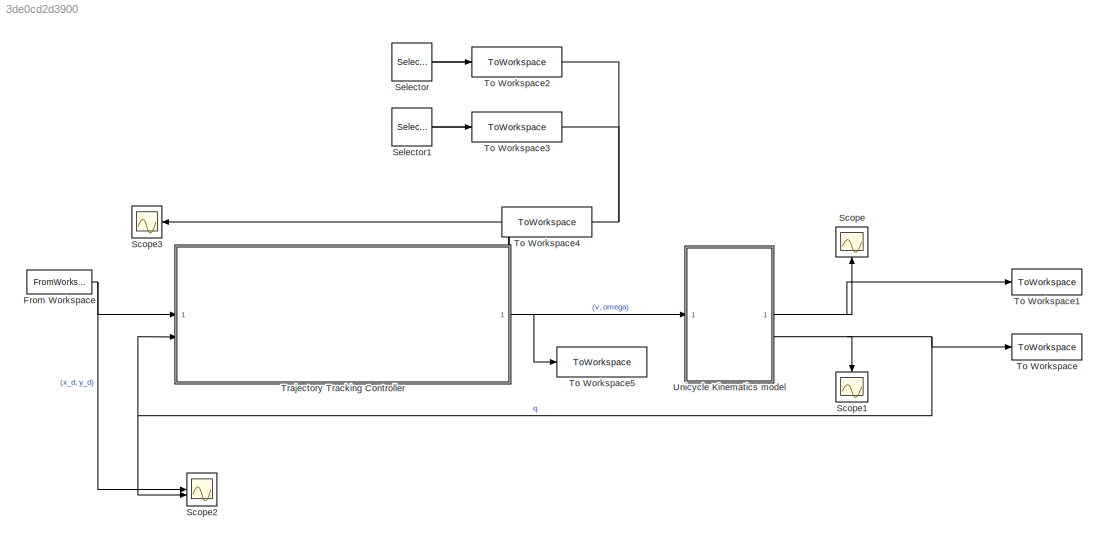
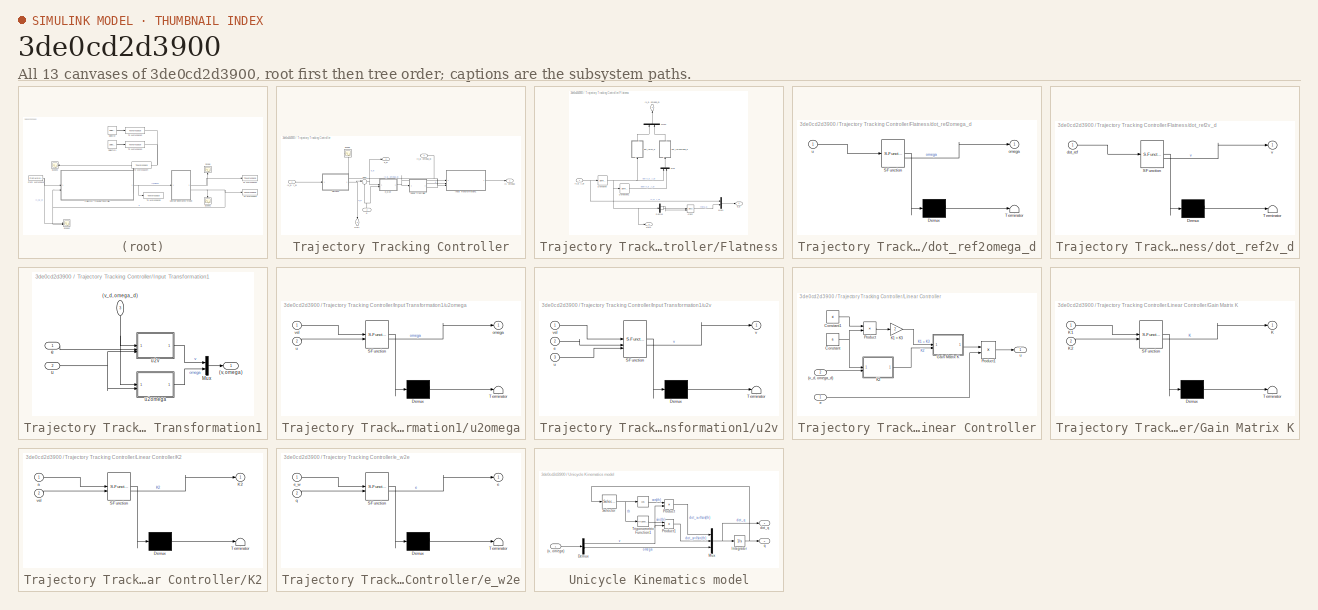
[diagram: thumbnail index - all 13 canvases of the model, root first then tree order]
MODEL slx_3de0cd2d3900
KIND model
CONFIG AbsTol = auto
CONFIG EnableMultiTasking = off
CONFIG FixedStep = Ts
CONFIG MaxStep = auto
CONFIG MinStep = auto
CONFIG RelTol = 1e-3
CONFIG SampleTimeConstraint = Unconstrained
CONFIG SolverName = FixedStepAuto
CONFIG StartTime = 0.0
CONFIG StopTime = 14.3996
BLOCK [FromWorkspace] From Workspace
  OutDataTypeStr = double
  SampleTime = -1
  VariableName = ref
BLOCK [Scope] Scope
  ActiveDisplayYMaximum = 630.9359
  ActiveDisplayYMinimum = -1203.295
  DataLoggingVariableName = ScopeData4
  Floating = off
  GraphicalSettings = {"GraphicalSettings":{"LegacySettings":true,"Style":{"AxesScalingProperties":{"AlignXAxis":"Center","AlignYAxis":"Center","AutoScaleXAxisLimits":true,"AxesScaling":"Manual","AxesScalingNumUpdates":10,"ScaleAxesLimitsAtStop":false,"XAxisDataRange":100,"YAxisDataRange":80},"Style":{"AxesColor":"[0.0705882352941176 0.0705882352941176 0.0705882352941176]","BackgroundColor":"[0.129411764705882 0.129411...<+803ch>
  LayoutDimensionsString = [1 1]
  MultipleDisplayCache = [{"MaxYLimMag":10,"MaxYLimReal":630.9359,"MinYLimMag":0,"MinYLimReal":-1203.295,"PlotAsMagnitudePhase":false,"ShowGrid":true,"ShowLegend":false,"Title":"%<SignalLabel>","YLabel":""}]
  NameLocation = right
  NumInputPorts = 1
  WasSavedAsWebScope = on
  WindowPosition = [47 38 1874 1011]
BLOCK [Scope] Scope1
  ActiveDisplayYMaximum = 317.524
  ActiveDisplayYMinimum = -65.2076
  Floating = off
  GraphicalSettings = {"GraphicalSettings":{"LegacySettings":true,"Style":{"AxesScalingProperties":{"AlignXAxis":"Center","AlignYAxis":"Center","AutoScaleXAxisLimits":false,"AxesScaling":"Manual","AxesScalingNumUpdates":10,"ScaleAxesLimitsAtStop":false,"XAxisDataRange":100,"YAxisDataRange":80},"Style":{"AxesColor":"[0.0666666666666667 0.0666666666666667 0.0666666666666667]","BackgroundColor":"[0.12156862745098 0.121568...<+994ch>
  LayoutDimensionsString = [1 1]
  MultipleDisplayCache = [{"MaxYLimMag":1518.8667,"MaxYLimReal":317.524,"MinYLimMag":0,"MinYLimReal":-65.2076,"PlotAsMagnitudePhase":false,"ShowGrid":true,"ShowLegend":true,"Title":"%<SignalLabel>","YLabel":""}]
  NameLocation = left
  NumInputPorts = 1
  ShowLegend = on
  WasSavedAsWebScope = on
  WindowPosition = [1 49 1536 793]
BLOCK [Scope] Scope2
  ActiveDisplayYMaximum = 262.44406438880804
  ActiveDisplayYMinimum = 86.844534678164
  DataLoggingVariableName = ScopeData2
  Floating = off
  GraphicalSettings = {"AxesScalingProperties":{"AlignXAxis":"Center","AlignYAxis":"Center","AutoScaleXAxisLimits":false,"AxesScaling":"Manual","AxesScalingNumUpdates":10,"ExpandOnly":true,"ScaleAxesLimitsAtStop":false,"XAxisDataRange":100,"YAxisDataRange":80},"DisplayProperties":{"ColorOrder":["auto","auto","auto","auto","auto","auto","auto","auto","auto","auto","auto","auto","auto","auto","auto","auto","auto","auto",...<+2464ch>
  LayoutDimensionsString = [1 1]
  MultipleDisplayCache = [{"MaxYLimMag":287.9156445226597,"MaxYLimReal":262.44406438880804,"MinYLimMag":0,"MinYLimReal":86.844534678164,"PlotAsMagnitudePhase":false,"ShowGrid":true,"ShowLegend":true,"Title":"%<SignalLabel>","YLabel":""}]
  NumInputPorts = 2
  ScopeFrameLocation = window
  ShowLegend = on
  WasSavedAsWebScope = on
  WindowPosition = [1.000000,49.000000,1536.000000,793.000000,]
BLOCK [Scope] Scope3
  ActiveDisplayYMaximum = 286.87400698797074
  ActiveDisplayYMinimum = -31.874889665330077
  DataLoggingVariableName = ScopeData1
  Floating = off
  GraphicalSettings = {"Style":{"BackgroundColor":[0.12941176470588237,0.12941176470588237,0.12941176470588237],"AxesColor":[0.07058823529411765,0.07058823529411765,0.07058823529411765],"LabelsColor":[0.8509803921568627,0.8509803921568627,0.8509803921568627],"PreserveColors":false,"Visible":[true,true,true],"LineStyle":["-","-","-"],"LineWidth":[1.5,1.5,1.5],"BarWidth":[0.9,0.9,0.9],"LineColor":["auto","auto","auto"],"...<+2400ch>
  MultipleDisplayCache = [{"MaxYLimMag":286.87400698797074,"MaxYLimReal":286.87400698797074,"MinYLimMag":0,"MinYLimReal":-31.874889665330077,"PlotAsMagnitudePhase":false,"ShowGrid":true,"ShowLegend":false,"Title":"%<SignalLabel>","YLabel":""}]
  NameLocation = top
  NumInputPorts = 1
  ScopeFrameLocation = window
  WasSavedAsWebScope = on
  WindowPosition = [488.000000,222.000000,560.000000,420.000000,]
BLOCK [Selector] Selector
  IndexOptions = Index vector (dialog)
  Indices = [1]
  InputPortWidth = 3
  OutputSizes = 1
BLOCK [Selector] Selector1
  IndexOptions = Index vector (dialog)
  Indices = [2]
  InputPortWidth = 3
  OutputSizes = 1
BLOCK [ToWorkspace] To Workspace
  FixptAsFi = on
  MaxDataPoints = inf
  SampleTime = -1
  SaveFormat = Timeseries
  VariableName = q
BLOCK [ToWorkspace] To Workspace1
  FixptAsFi = on
  MaxDataPoints = inf
  SampleTime = -1
  SaveFormat = Timeseries
  VariableName = qdot
BLOCK [ToWorkspace] To Workspace2
  FixptAsFi = on
  MaxDataPoints = inf
  SampleTime = -1
  SaveFormat = Timeseries
  VariableName = e_x
BLOCK [ToWorkspace] To Workspace3
  FixptAsFi = on
  MaxDataPoints = inf
  SampleTime = -1
  SaveFormat = Timeseries
  VariableName = e_y
BLOCK [ToWorkspace] To Workspace4
  FixptAsFi = on
  MaxDataPoints = inf
  SampleTime = -1
  SaveFormat = Timeseries
  VariableName = vd_wd
BLOCK [ToWorkspace] To Workspace5
  FixptAsFi = on
  MaxDataPoints = inf
  SampleTime = -1
  SaveFormat = Timeseries
  VariableName = vw
BLOCK [SubSystem] Trajectory Tracking Controller
  PortSchema = {"entries":[{"content":{"sides":[{"content":{"connectorIds":["In1","In2"]},"type":"ConnectorPlacement.EquallySpacedRectSide","uuid":"cd877c46-8e15-457a-8f54-61807ea2ef45"},{"content":{"connectorIds":["Out1"],"side":"RIGHT"},"type":"ConnectorPlacement.EquallySpacedRectSide","uuid":"176f7bf5-d0a0-4212-99fa-33b58d1f7853"},{"content":{"connectorIds":["Out2","Out3","Out4"],"side":"TOP"},"type":"Connect...<+266ch>
BLOCK [Outport] Trajectory Tracking Controller/(v, omega)
BLOCK [Outport] Trajectory Tracking Controller/(v_d, omega_d)
  Port = 4
BLOCK [Inport] Trajectory Tracking Controller/(x_d, y_d)
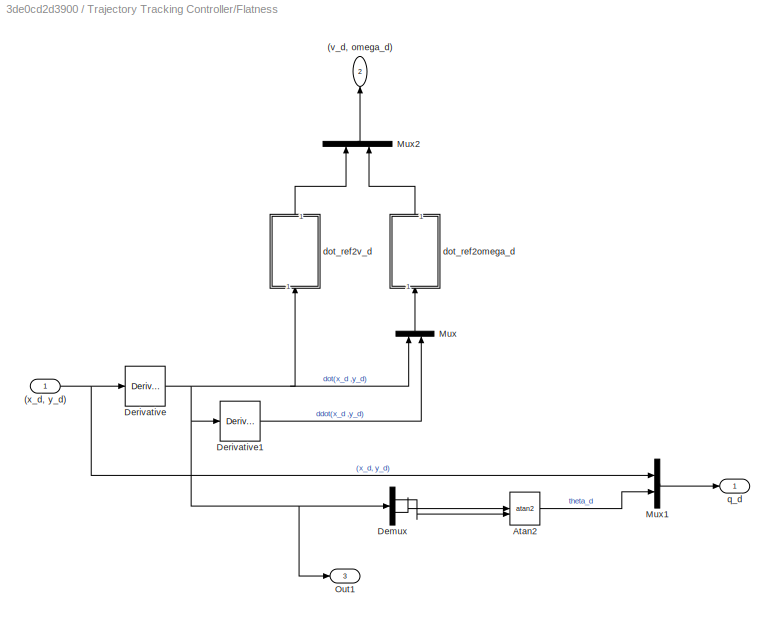
BLOCK [SubSystem] Trajectory Tracking Controller/Flatness
  PortSchema = {"entries":[{"content":{"sides":[{"content":{"connectorIds":["In1"]},"type":"ConnectorPlacement.EquallySpacedRectSide","uuid":"bc490c8e-5666-439b-9939-62bd84628b1f"},{"content":{"connectorIds":["Out1"],"side":"RIGHT"},"type":"ConnectorPlacement.EquallySpacedRectSide","uuid":"03a20fcc-2a82-4af2-a970-ff3426fda7d9"},{"content":{"connectorIds":["Out2","Out3"],"side":"TOP"},"type":"ConnectorPlacement.E...<+253ch>
BLOCK [Outport] Trajectory Tracking Controller/Flatness/(v_d, omega_d)
  NameLocation = right
  Port = 2
BLOCK [Inport] Trajectory Tracking Controller/Flatness/(x_d, y_d)
BLOCK [Trigonometry] Trajectory Tracking Controller/Flatness/Atan2
  Operator = atan2
BLOCK [Demux] Trajectory Tracking Controller/Flatness/Demux
  Outputs = 2
BLOCK [Derivative] Trajectory Tracking Controller/Flatness/Derivative
BLOCK [Derivative] Trajectory Tracking Controller/Flatness/Derivative1
BLOCK [Mux] Trajectory Tracking Controller/Flatness/Mux
  DisplayOption = bar
  Inputs = 2
  NameLocation = right
BLOCK [Mux] Trajectory Tracking Controller/Flatness/Mux1
  DisplayOption = bar
  Inputs = 2
BLOCK [Mux] Trajectory Tracking Controller/Flatness/Mux2
  DisplayOption = bar
  Inputs = 2
  NameLocation = right
BLOCK [Outport] Trajectory Tracking Controller/Flatness/Out1
  Port = 3
BLOCK [SubSystem] Trajectory Tracking Controller/Flatness/dot_ref2omega_d
  ErrorFcn = Stateflow.Translate.translate
  NameLocation = right
  PermitHierarchicalResolution = ExplicitOnly
  SFBlockType = MATLAB Function
  TreatAsAtomicUnit = on
BLOCK [Demux] Trajectory Tracking Controller/Flatness/dot_ref2omega_d/ Demux 
  Outputs = 1
BLOCK [S-Function] Trajectory Tracking Controller/Flatness/dot_ref2omega_d/ SFunction 
  EnableBusSupport = off
  FunctionName = sf_sfun
  PortCounts = [1 2]
  SFcnIsStateOwnerBlock = off
  SFunctionDeploymentMode = off
  Tag = Stateflow S-Function 1
BLOCK [Terminator] Trajectory Tracking Controller/Flatness/dot_ref2omega_d/ Terminator 
BLOCK [Outport] Trajectory Tracking Controller/Flatness/dot_ref2omega_d/omega
BLOCK [Inport] Trajectory Tracking Controller/Flatness/dot_ref2omega_d/u
BLOCK [SubSystem] Trajectory Tracking Controller/Flatness/dot_ref2v_d
  ErrorFcn = Stateflow.Translate.translate
  NameLocation = right
  PermitHierarchicalResolution = ExplicitOnly
  SFBlockType = MATLAB Function
  TreatAsAtomicUnit = on
BLOCK [Demux] Trajectory Tracking Controller/Flatness/dot_ref2v_d/ Demux 
  Outputs = 1
BLOCK [S-Function] Trajectory Tracking Controller/Flatness/dot_ref2v_d/ SFunction 
  EnableBusSupport = off
  FunctionName = sf_sfun
  PortCounts = [1 2]
  SFcnIsStateOwnerBlock = off
  SFunctionDeploymentMode = off
  Tag = Stateflow S-Function 2
BLOCK [Terminator] Trajectory Tracking Controller/Flatness/dot_ref2v_d/ Terminator 
BLOCK [Inport] Trajectory Tracking Controller/Flatness/dot_ref2v_d/dot_ref
BLOCK [Outport] Trajectory Tracking Controller/Flatness/dot_ref2v_d/v
BLOCK [Outport] Trajectory Tracking Controller/Flatness/q_d
BLOCK [SubSystem] Trajectory Tracking Controller/Input Transformation1
  PortSchema = {"entries":[{"content":{"sides":[{"content":{"connectorIds":["In1","In2"]},"type":"ConnectorPlacement.EquallySpacedRectSide","uuid":"4cbebdc1-8913-4bb0-9524-d854c819f784"},{"content":{"connectorIds":["Out1"],"side":"RIGHT"},"type":"ConnectorPlacement.EquallySpacedRectSide","uuid":"178a2b4a-0c33-47f3-8be3-bd76dfc47961"},{"content":{"connectorIds":["In3"],"side":"TOP"},"type":"ConnectorPlacement.Equ...<+251ch>
BLOCK [Outport] Trajectory Tracking Controller/Input Transformation1/(v, omega)
BLOCK [Inport] Trajectory Tracking Controller/Input Transformation1/(v_d, omega_d)
  NameLocation = left
  Port = 3
BLOCK [Mux] Trajectory Tracking Controller/Input Transformation1/Mux
  DisplayOption = bar
  Inputs = 2
BLOCK [Inport] Trajectory Tracking Controller/Input Transformation1/e
BLOCK [Inport] Trajectory Tracking Controller/Input Transformation1/u
  Port = 2
BLOCK [SubSystem] Trajectory Tracking Controller/Input Transformation1/u2omega
  ErrorFcn = Stateflow.Translate.translate
  PermitHierarchicalResolution = ExplicitOnly
  SFBlockType = MATLAB Function
  TreatAsAtomicUnit = on
BLOCK [Demux] Trajectory Tracking Controller/Input Transformation1/u2omega/ Demux 
  Outputs = 1
BLOCK [S-Function] Trajectory Tracking Controller/Input Transformation1/u2omega/ SFunction 
  EnableBusSupport = off
  FunctionName = sf_sfun
  PortCounts = [2 2]
  SFcnIsStateOwnerBlock = off
  SFunctionDeploymentMode = off
  Tag = Stateflow S-Function 6
BLOCK [Terminator] Trajectory Tracking Controller/Input Transformation1/u2omega/ Terminator 
BLOCK [Outport] Trajectory Tracking Controller/Input Transformation1/u2omega/omega
BLOCK [Inport] Trajectory Tracking Controller/Input Transformation1/u2omega/u
  Port = 2
BLOCK [Inport] Trajectory Tracking Controller/Input Transformation1/u2omega/vel
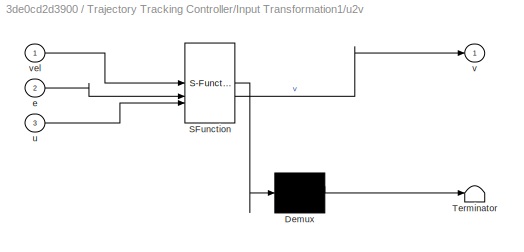
BLOCK [SubSystem] Trajectory Tracking Controller/Input Transformation1/u2v
  ErrorFcn = Stateflow.Translate.translate
  PermitHierarchicalResolution = ExplicitOnly
  SFBlockType = MATLAB Function
  TreatAsAtomicUnit = on
BLOCK [Demux] Trajectory Tracking Controller/Input Transformation1/u2v/ Demux 
  Outputs = 1
BLOCK [S-Function] Trajectory Tracking Controller/Input Transformation1/u2v/ SFunction 
  EnableBusSupport = off
  FunctionName = sf_sfun
  PortCounts = [3 2]
  SFcnIsStateOwnerBlock = off
  SFunctionDeploymentMode = off
  Tag = Stateflow S-Function 7
BLOCK [Terminator] Trajectory Tracking Controller/Input Transformation1/u2v/ Terminator 
BLOCK [Inport] Trajectory Tracking Controller/Input Transformation1/u2v/e
  Port = 2
BLOCK [Inport] Trajectory Tracking Controller/Input Transformation1/u2v/u
  Port = 3
BLOCK [Outport] Trajectory Tracking Controller/Input Transformation1/u2v/v
BLOCK [Inport] Trajectory Tracking Controller/Input Transformation1/u2v/vel
BLOCK [SubSystem] Trajectory Tracking Controller/Linear Controller
  PortSchema = {"entries":[{"content":{"sides":[{"content":{"connectorIds":["In1"]},"type":"ConnectorPlacement.EquallySpacedRectSide","uuid":"663a145a-b0a1-462d-957e-da25aa8d70ec"},{"content":{"connectorIds":["Out1"],"side":"RIGHT"},"type":"ConnectorPlacement.EquallySpacedRectSide","uuid":"3d00da72-66aa-4dae-9c0c-49820669bfbe"},{"content":{"connectorIds":["In2"],"side":"TOP"},"type":"ConnectorPlacement.EquallySp...<+245ch>
BLOCK [Inport] Trajectory Tracking Controller/Linear Controller/(v_d, omega_d)
  Port = 2
BLOCK [Constant] Trajectory Tracking Controller/Linear Controller/Constant
  Value = a
BLOCK [Constant] Trajectory Tracking Controller/Linear Controller/Constant1
  Value = xi
BLOCK [SubSystem] Trajectory Tracking Controller/Linear Controller/Gain Matrix K
  ErrorFcn = Stateflow.Translate.translate
  PermitHierarchicalResolution = ExplicitOnly
  SFBlockType = MATLAB Function
  TreatAsAtomicUnit = on
BLOCK [Demux] Trajectory Tracking Controller/Linear Controller/Gain Matrix K/ Demux 
  Outputs = 1
BLOCK [S-Function] Trajectory Tracking Controller/Linear Controller/Gain Matrix K/ SFunction 
  EnableBusSupport = off
  FunctionName = sf_sfun
  PortCounts = [2 2]
  SFcnIsStateOwnerBlock = off
  SFunctionDeploymentMode = off
  Tag = Stateflow S-Function 4
BLOCK [Terminator] Trajectory Tracking Controller/Linear Controller/Gain Matrix K/ Terminator 
BLOCK [Outport] Trajectory Tracking Controller/Linear Controller/Gain Matrix K/K
BLOCK [Inport] Trajectory Tracking Controller/Linear Controller/Gain Matrix K/K1
BLOCK [Inport] Trajectory Tracking Controller/Linear Controller/Gain Matrix K/K2
  Port = 2
BLOCK [Gain] Trajectory Tracking Controller/Linear Controller/K1 = K3
  Gain = 2
  NameLocation = right
BLOCK [SubSystem] Trajectory Tracking Controller/Linear Controller/K2
  ErrorFcn = Stateflow.Translate.translate
  PermitHierarchicalResolution = ExplicitOnly
  SFBlockType = MATLAB Function
  TreatAsAtomicUnit = on
BLOCK [Demux] Trajectory Tracking Controller/Linear Controller/K2/ Demux 
  Outputs = 1
BLOCK [S-Function] Trajectory Tracking Controller/Linear Controller/K2/ SFunction 
  EnableBusSupport = off
  FunctionName = sf_sfun
  PortCounts = [2 2]
  SFcnIsStateOwnerBlock = off
  SFunctionDeploymentMode = off
  Tag = Stateflow S-Function 5
BLOCK [Terminator] Trajectory Tracking Controller/Linear Controller/K2/ Terminator 
BLOCK [Outport] Trajectory Tracking Controller/Linear Controller/K2/K2
BLOCK [Inport] Trajectory Tracking Controller/Linear Controller/K2/a
BLOCK [Inport] Trajectory Tracking Controller/Linear Controller/K2/vel
  Port = 2
BLOCK [Product] Trajectory Tracking Controller/Linear Controller/Product
BLOCK [Product] Trajectory Tracking Controller/Linear Controller/Product1
  Multiplication = Matrix(*)
BLOCK [Inport] Trajectory Tracking Controller/Linear Controller/e
BLOCK [Outport] Trajectory Tracking Controller/Linear Controller/u
BLOCK [Outport] Trajectory Tracking Controller/Out1
  NameLocation = left
  Port = 3
BLOCK [Scope] Trajectory Tracking Controller/Scope
  ActiveDisplayYMaximum = 1
  ActiveDisplayYMinimum = -1
  DataLoggingVariableName = ScopeData3
  Floating = off
  GraphicalSettings = {"Style":{"BackgroundColor":[0.12941176470588237,0.12941176470588237,0.12941176470588237],"AxesColor":[0.07058823529411765,0.07058823529411765,0.07058823529411765],"LabelsColor":[0.8509803921568627,0.8509803921568627,0.8509803921568627],"PreserveColors":false,"Visible":[true,true],"LineStyle":["-","-"],"LineWidth":[1.5,1.5],"BarWidth":[0.9,0.9],"LineColor":["auto","auto"],"LineFaceAlpha":[1,1],"Li...<+2085ch>
  MultipleDisplayCache = [{"MaxYLimMag":1,"MaxYLimReal":1,"MinYLimMag":0,"MinYLimReal":-1,"PlotAsMagnitudePhase":false,"ShowGrid":true,"ShowLegend":false,"Title":"%<SignalLabel>","YLabel":""}]
  NumInputPorts = 1
  ScopeFrameLocation = window
  WasSavedAsWebScope = on
  WindowPosition = [1.000000,49.000000,1536.000000,793.000000,]
BLOCK [Sum] Trajectory Tracking Controller/Sum
  Inputs = |+-
BLOCK [Outport] Trajectory Tracking Controller/e_w
  Port = 2
BLOCK [SubSystem] Trajectory Tracking Controller/e_w2e
  ErrorFcn = Stateflow.Translate.translate
  PermitHierarchicalResolution = ExplicitOnly
  SFBlockType = MATLAB Function
  TreatAsAtomicUnit = on
BLOCK [Demux] Trajectory Tracking Controller/e_w2e/ Demux 
  Outputs = 1
BLOCK [S-Function] Trajectory Tracking Controller/e_w2e/ SFunction 
  EnableBusSupport = off
  FunctionName = sf_sfun
  PortCounts = [2 2]
  SFcnIsStateOwnerBlock = off
  SFunctionDeploymentMode = off
  Tag = Stateflow S-Function 3
BLOCK [Terminator] Trajectory Tracking Controller/e_w2e/ Terminator 
BLOCK [Outport] Trajectory Tracking Controller/e_w2e/e
BLOCK [Inport] Trajectory Tracking Controller/e_w2e/e_w
BLOCK [Inport] Trajectory Tracking Controller/e_w2e/q
  Port = 2
BLOCK [Inport] Trajectory Tracking Controller/q
  Port = 2
BLOCK [SubSystem] Unicycle Kinematics model
BLOCK [Trigonometry] Unicycle Kinematics model/ 
  Operator = cos
BLOCK [Inport] Unicycle Kinematics model/(v, omega)
BLOCK [Demux] Unicycle Kinematics model/Demux
  Outputs = 2
BLOCK [Integrator] Unicycle Kinematics model/Integrator
  InitialCondition = [x0; y0; theta0]
BLOCK [Mux] Unicycle Kinematics model/Mux
  DisplayOption = bar
  Inputs = 3
BLOCK [Product] Unicycle Kinematics model/Product
BLOCK [Product] Unicycle Kinematics model/Product1
BLOCK [Selector] Unicycle Kinematics model/Selector
  IndexOptions = Index vector (dialog)
  Indices = [3]
  InputPortWidth = 3
  OutputSizes = 1
BLOCK [Trigonometry] Unicycle Kinematics model/Trigonometric Function1
BLOCK [Outport] Unicycle Kinematics model/dot_q
BLOCK [Outport] Unicycle Kinematics model/q
  Port = 2
NET From Workspace:1 -> Scope2:1, Trajectory Tracking Controller:1
LINE Selector1:1 -> To Workspace3:1
LINE Selector:1 -> To Workspace2:1
LINE Trajectory Tracking Controller/(x_d, y_d):1 -> Trajectory Tracking Controller/Flatness:1
NET Trajectory Tracking Controller/Flatness/(x_d, y_d):1 -> Trajectory Tracking Controller/Flatness/Derivative:1, Trajectory Tracking Controller/Flatness/Mux1:1
LINE Trajectory Tracking Controller/Flatness/Atan2:1 -> Trajectory Tracking Controller/Flatness/Mux1:2
LINE Trajectory Tracking Controller/Flatness/Demux:1 -> Trajectory Tracking Controller/Flatness/Atan2:2
LINE Trajectory Tracking Controller/Flatness/Demux:2 -> Trajectory Tracking Controller/Flatness/Atan2:1
LINE Trajectory Tracking Controller/Flatness/Derivative1:1 -> Trajectory Tracking Controller/Flatness/Mux:2
NET Trajectory Tracking Controller/Flatness/Derivative:1 -> Trajectory Tracking Controller/Flatness/Demux:1, Trajectory Tracking Controller/Flatness/Derivative1:1, Trajectory Tracking Controller/Flatness/Mux:1, Trajectory Tracking Controller/Flatness/Out1:1, Trajectory Tracking Controller/Flatness/dot_ref2v_d:1
LINE Trajectory Tracking Controller/Flatness/Mux1:1 -> Trajectory Tracking Controller/Flatness/q_d:1
LINE Trajectory Tracking Controller/Flatness/Mux2:1 -> Trajectory Tracking Controller/Flatness/(v_d, omega_d):1
LINE Trajectory Tracking Controller/Flatness/Mux:1 -> Trajectory Tracking Controller/Flatness/dot_ref2omega_d:1
LINE Trajectory Tracking Controller/Flatness/dot_ref2omega_d:1 -> Trajectory Tracking Controller/Flatness/Mux2:2
LINE Trajectory Tracking Controller/Flatness/dot_ref2v_d:1 -> Trajectory Tracking Controller/Flatness/Mux2:1
NET Trajectory Tracking Controller/Flatness:1 -> Trajectory Tracking Controller/Out1:1, Trajectory Tracking Controller/Sum:1
NET Trajectory Tracking Controller/Flatness:2 -> Trajectory Tracking Controller/(v_d, omega_d):1, Trajectory Tracking Controller/Input Transformation1:3, Trajectory Tracking Controller/Linear Controller:2
LINE Trajectory Tracking Controller/Flatness:3 -> Trajectory Tracking Controller/Scope:1
NET Trajectory Tracking Controller/Input Transformation1/(v_d, omega_d):1 -> Trajectory Tracking Controller/Input Transformation1/u2omega:1, Trajectory Tracking Controller/Input Transformation1/u2v:1
LINE Trajectory Tracking Controller/Input Transformation1/Mux:1 -> Trajectory Tracking Controller/Input Transformation1/(v, omega):1
LINE Trajectory Tracking Controller/Input Transformation1/e:1 -> Trajectory Tracking Controller/Input Transformation1/u2v:2
LINE Trajectory Tracking Controller/Input Transformation1/u2omega:1 -> Trajectory Tracking Controller/Input Transformation1/Mux:2
LINE Trajectory Tracking Controller/Input Transformation1/u2v:1 -> Trajectory Tracking Controller/Input Transformation1/Mux:1
NET Trajectory Tracking Controller/Input Transformation1/u:1 -> Trajectory Tracking Controller/Input Transformation1/u2omega:2, Trajectory Tracking Controller/Input Transformation1/u2v:3
LINE Trajectory Tracking Controller/Input Transformation1:1 -> Trajectory Tracking Controller/(v, omega):1
LINE Trajectory Tracking Controller/Linear Controller/(v_d, omega_d):1 -> Trajectory Tracking Controller/Linear Controller/K2:2
LINE Trajectory Tracking Controller/Linear Controller/Constant1:1 -> Trajectory Tracking Controller/Linear Controller/Product:1
NET Trajectory Tracking Controller/Linear Controller/Constant:1 -> Trajectory Tracking Controller/Linear Controller/K2:1, Trajectory Tracking Controller/Linear Controller/Product:2
LINE Trajectory Tracking Controller/Linear Controller/Gain Matrix K:1 -> Trajectory Tracking Controller/Linear Controller/Product1:1
LINE Trajectory Tracking Controller/Linear Controller/K1 = K3:1 -> Trajectory Tracking Controller/Linear Controller/Gain Matrix K:1
LINE Trajectory Tracking Controller/Linear Controller/K2:1 -> Trajectory Tracking Controller/Linear Controller/Gain Matrix K:2
LINE Trajectory Tracking Controller/Linear Controller/Product1:1 -> Trajectory Tracking Controller/Linear Controller/u:1
LINE Trajectory Tracking Controller/Linear Controller/Product:1 -> Trajectory Tracking Controller/Linear Controller/K1 = K3:1
LINE Trajectory Tracking Controller/Linear Controller/e:1 -> Trajectory Tracking Controller/Linear Controller/Product1:2
LINE Trajectory Tracking Controller/Linear Controller:1 -> Trajectory Tracking Controller/Input Transformation1:2
NET Trajectory Tracking Controller/Sum:1 -> Trajectory Tracking Controller/e_w2e:1, Trajectory Tracking Controller/e_w:1
NET Trajectory Tracking Controller/e_w2e:1 -> Trajectory Tracking Controller/Input Transformation1:1, Trajectory Tracking Controller/Linear Controller:1
NET Trajectory Tracking Controller/q:1 -> Trajectory Tracking Controller/Sum:2, Trajectory Tracking Controller/e_w2e:2
NET Trajectory Tracking Controller:1 -> To Workspace5:1, Unicycle Kinematics model:1
NET Trajectory Tracking Controller:2 -> Selector1:1, Selector:1
LINE Trajectory Tracking Controller:3 -> Scope3:1
LINE Trajectory Tracking Controller:4 -> To Workspace4:1
LINE Unicycle Kinematics model/ :1 -> Unicycle Kinematics model/Product:1
LINE Unicycle Kinematics model/(v, omega):1 -> Unicycle Kinematics model/Demux:1
NET Unicycle Kinematics model/Demux:1 -> Unicycle Kinematics model/Product1:2, Unicycle Kinematics model/Product:2
LINE Unicycle Kinematics model/Demux:2 -> Unicycle Kinematics model/Mux:3
NET Unicycle Kinematics model/Integrator:1 -> Unicycle Kinematics model/Selector:1, Unicycle Kinematics model/q:1
NET Unicycle Kinematics model/Mux:1 -> Unicycle Kinematics model/Integrator:1, Unicycle Kinematics model/dot_q:1
LINE Unicycle Kinematics model/Product1:1 -> Unicycle Kinematics model/Mux:2
LINE Unicycle Kinematics model/Product:1 -> Unicycle Kinematics model/Mux:1
NET Unicycle Kinematics model/Selector:1 -> Unicycle Kinematics model/ :1, Unicycle Kinematics model/Trigonometric Function1:1
LINE Unicycle Kinematics model/Trigonometric Function1:1 -> Unicycle Kinematics model/Product1:1
NET Unicycle Kinematics model:1 -> Scope:1, To Workspace1:1
NET Unicycle Kinematics model:2 -> Scope1:1, Scope2:2, To Workspace:1, Trajectory Tracking Controller:2
note: NET lines group one-source signal fan-out (src -> all destinations, sorted); 1:1 wires keep LINE
CHART Trajectory Tracking Controller/Flatness/dot_ref2v_d states=1 transitions=1
  STATE_LABEL 'eML_blk_kernel()'
  STATE_LABEL 'SCRIPT:\nfunction v = fcn(dot_ref)\n    dot_x = dot_ref(1);\n    dot_y = dot_ref(2);\n\n    v = sqrt(dot_x^2 + dot_y^2);\n\n    v_min = 1e-6;\n    if ~isfinite(v) || v < v_min\n        v = v_min;\n    end\nend\n'
CHART Trajectory Tracking Controller/e_w2e states=1 transitions=1
  STATE_LABEL 'eML_blk_kernel()'
  STATE_LABEL 'SCRIPT:\nfunction e = fcn(e_w, q)\n    theta = q(3);\n\n    R = [cos(theta) sin(theta) 0; \n        -sin(theta) cos(theta) 0;\n             0          0      1];\n\n    e = R*e_w; \n    e(3) = atan2(sin(e(3)), cos(e(3))); \n\nend\n'
CHART Trajectory Tracking Controller/Linear Controller/Gain Matrix K states=1 transitions=1
  STATE_LABEL 'eML_blk_kernel()'
  STATE_LABEL 'SCRIPT:\nfunction K = fcn(K1, K2)\nK3 = K1;\n\nK = [-K1  0   0;\n      0  -K2 -K3];'
CHART Trajectory Tracking Controller/Linear Controller/K2 states=1 transitions=1
  STATE_LABEL 'eML_blk_kernel()'
  STATE_LABEL 'SCRIPT:\nfunction K2 = fcn(a, vel)\nv_d = vel(1);\nomega_d = vel(2);\n\nK2 = (a^2-omega_d^2)/(v_d);'
CHART Trajectory Tracking Controller/Input Transformation1/u2omega states=1 transitions=1
  STATE_LABEL 'eML_blk_kernel()'
  STATE_LABEL 'SCRIPT:\nfunction omega = fcn(vel,u)\n    omega_d = vel(2);\n\n    omega = omega_d-u(2);\n\n'
CHART Trajectory Tracking Controller/Input Transformation1/u2v states=1 transitions=1
  STATE_LABEL 'eML_blk_kernel()'
  STATE_LABEL 'SCRIPT:\nfunction v = fcn(vel, e, u)\n v_d = vel(1);\n\n v = v_d*cos(e(3))-u(1);\n'
CHART Trajectory Tracking Controller/Flatness/dot_ref2omega_d states=1 transitions=1
  STATE_LABEL 'eML_blk_kernel()'
  STATE_LABEL 'SCRIPT:\nfunction omega = fcn(u)\n    dot_x  = u(1);\n    dot_y  = u(2);\n    ddot_x = u(3);\n    ddot_y = u(4);\n\n    den = dot_x^2 + dot_y^2;\n\n    % Guard against singularity / non-finite inputs\n    eps_den = 1e-6;\n    if ~isfinite(den) || den < eps_den\n        omega = 0;             % safe default at standstill\n        return;\n    end\n\n    num = dot_x*ddot_y - dot_y*ddot_x;\n\n    if ~isfinite(num)\n   ...<+253ch>'
CHART  states=0 transitions=0
CHART  states=0 transitions=0
CHART  states=0 transitions=0
CHART  states=0 transitions=0
CHART  states=0 transitions=0
CHART  states=0 transitions=0
CHART  states=0 transitions=0
